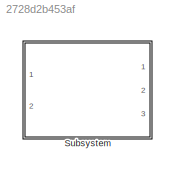
MODEL slx_2728d2b453af
KIND library
CONFIG AbsTol = auto
CONFIG EnableMultiTasking = off
CONFIG FixedStep = auto
CONFIG MaxStep = auto
CONFIG MinStep = auto
CONFIG RelTol = 1e-3
CONFIG SampleTimeConstraint = Unconstrained
CONFIG Solver = VariableStepAuto
CONFIG SolverName = VariableStepAuto
CONFIG StartTime = 0.0
CONFIG StopTime = 10.0
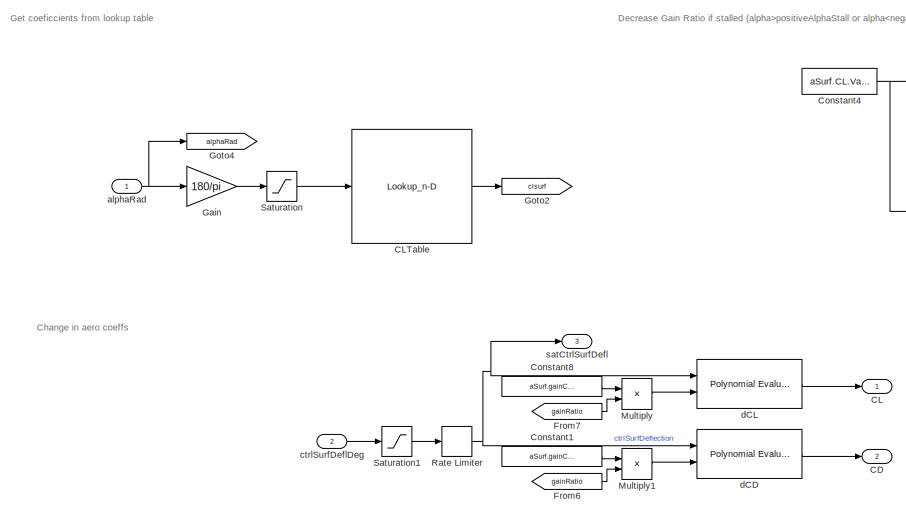
[diagram: Subsystem - part 1/2, left side, full height]
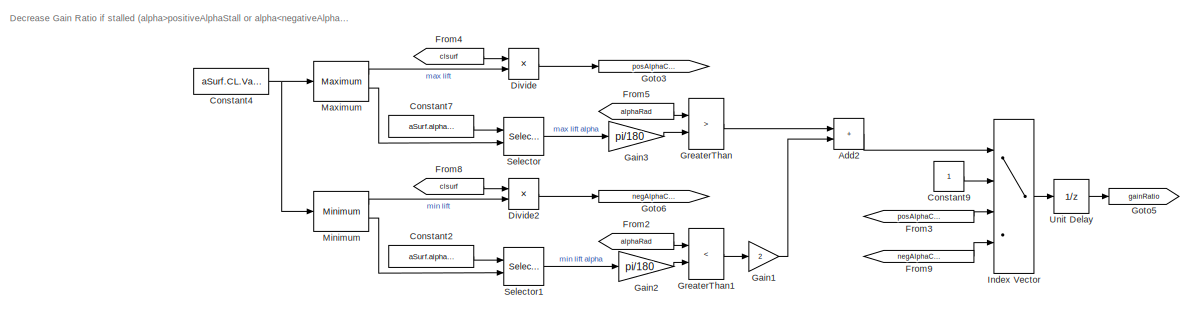
[diagram: Subsystem - part 2/2, top right region]
BLOCK [SubSystem] Subsystem
  Ports = [2, 3]
  RequestExecContextInheritance = off
BLOCK [Sum] Subsystem/Add2
  IconShape = rectangular
  Ports = [2, 1]
BLOCK [Outport] Subsystem/CD
  Port = 2
  VectorParamsAs1DForOutWhenUnconnected = off
BLOCK [Outport] Subsystem/CL
  VectorParamsAs1DForOutWhenUnconnected = off
BLOCK [Lookup_n-D] Subsystem/CLTable
  BreakpointsForDimension1 = aSurf.alpha.Value
  ExtrapMethod = Clip
  InternalRulePriority = Speed
  LookupTableObject = CLTable
  NumberOfTableDimensions = 1
  Ports = [1, 1]
  RndMeth = Simplest
  Table = aSurf.CL.Value
  UseLastTableValue = on
BLOCK [Constant] Subsystem/Constant1
  NameLocation = top
  Value = aSurf.gainCD.Value
BLOCK [Constant] Subsystem/Constant2
  Value = aSurf.alpha.Value
BLOCK [Constant] Subsystem/Constant4
  Value = aSurf.CL.Value
BLOCK [Constant] Subsystem/Constant7
  Value = aSurf.alpha.Value
BLOCK [Constant] Subsystem/Constant8
  NameLocation = top
  Value = aSurf.gainCL.Value
BLOCK [Constant] Subsystem/Constant9
BLOCK [Product] Subsystem/Divide
  Inputs = */
  Ports = [2, 1]
BLOCK [Product] Subsystem/Divide2
  Inputs = */
  Ports = [2, 1]
BLOCK [From] Subsystem/From2
  GotoTag = alphaRad
BLOCK [From] Subsystem/From3
  GotoTag = posAlphaCLRatio
BLOCK [From] Subsystem/From4
  GotoTag = clsurf
BLOCK [From] Subsystem/From5
  GotoTag = alphaRad
BLOCK [From] Subsystem/From6
  GotoTag = gainRatio
BLOCK [From] Subsystem/From7
  GotoTag = gainRatio
BLOCK [From] Subsystem/From8
  GotoTag = clsurf
BLOCK [From] Subsystem/From9
  GotoTag = negAlphaCLRatio
BLOCK [Gain] Subsystem/Gain
  Gain = 180/pi
BLOCK [Gain] Subsystem/Gain1
  Gain = 2
BLOCK [Gain] Subsystem/Gain2
  Gain = pi/180
BLOCK [Gain] Subsystem/Gain3
  Gain = pi/180
BLOCK [Goto] Subsystem/Goto2
  GotoTag = clsurf
BLOCK [Goto] Subsystem/Goto3
  GotoTag = posAlphaCLRatio
BLOCK [Goto] Subsystem/Goto4
  GotoTag = alphaRad
BLOCK [Goto] Subsystem/Goto5
  GotoTag = gainRatio
BLOCK [Goto] Subsystem/Goto6
  GotoTag = negAlphaCLRatio
BLOCK [RelationalOperator] Subsystem/GreaterThan
  InputSameDT = off
  Operator = >
  OutDataTypeStr = boolean
  Ports = [2, 1]
  RndMeth = Simplest
BLOCK [RelationalOperator] Subsystem/GreaterThan1
  InputSameDT = off
  Operator = <
  OutDataTypeStr = boolean
  Ports = [2, 1]
  RndMeth = Simplest
BLOCK [MultiPortSwitch] Subsystem/Index Vector
  DataPortOrder = Zero-based contiguous
  InputSameDT = off
  Ports = [4, 1]
  SaturateOnIntegerOverflow = off
  zeroidx = on
BLOCK [Reference] Subsystem/Maximum  REF=dspstat3/Maximum
  Ports = [1, 2]
  SourceBlock = dspstat3/Maximum
  SourceProductBaseCode = DS
  SourceType = Maximum
  UserDataPersistent = on
BLOCK [Reference] Subsystem/Minimum  REF=dspstat3/Minimum
  Ports = [1, 2]
  SourceBlock = dspstat3/Minimum
  SourceProductBaseCode = DS
  SourceType = Minimum
  UserDataPersistent = on
BLOCK [Product] Subsystem/Multiply
  Ports = [2, 1]
BLOCK [Product] Subsystem/Multiply1
  Ports = [2, 1]
BLOCK [RateLimiter] Subsystem/Rate Limiter
  FallingSlewLimit = -aSurf.maxCtrlDefSpeed.Value
  RisingSlewLimit = aSurf.maxCtrlDefSpeed.Value
  SampleTimeMode = inherited
BLOCK [Saturate] Subsystem/Saturation
  LowerLimit = -90
  UpperLimit = 90
BLOCK [Saturate] Subsystem/Saturation1
  LowerLimit = aSurf.minCtrlDef.Value
  UpperLimit = aSurf.maxCtrlDef.Value
BLOCK [Selector] Subsystem/Selector
  IndexOptions = Index vector (port)
  Indices = [1 3]
  InputPortWidth = length(vhcl.portWing.alpha.Value)
  OutputSizes = 1
  Ports = [2, 1]
BLOCK [Selector] Subsystem/Selector1
  IndexOptions = Index vector (port)
  Indices = [1 3]
  InputPortWidth = length(vhcl.portWing.alpha.Value)
  OutputSizes = 1
  Ports = [2, 1]
BLOCK [UnitDelay] Subsystem/Unit Delay
  HasFrameUpgradeWarning = on
  InitialCondition = 1
  SampleTime = -1
BLOCK [Inport] Subsystem/alphaRad
BLOCK [Inport] Subsystem/ctrlSurfDeflDeg
  Port = 2
BLOCK [Reference] Subsystem/dCD  REF=dsppolyfun/Polynomial
Evaluation
  Ports = [2, 1]
  SourceBlock = dsppolyfun/Polynomial\nEvaluation
  SourceProductBaseCode = DS
  SourceType = Polynomial Evaluation
BLOCK [Reference] Subsystem/dCL  REF=dsppolyfun/Polynomial
Evaluation
  Ports = [2, 1]
  SourceBlock = dsppolyfun/Polynomial\nEvaluation
  SourceProductBaseCode = DS
  SourceType = Polynomial Evaluation
BLOCK [Outport] Subsystem/satCtrlSurfDefl
  Port = 3
ANNOTATION Subsystem: Change in aero coeffs
ANNOTATION Subsystem: Decrease Gain Ratio if stalled (alpha>positiveAlphaStall or alpha<negativeAlphaStall)
ANNOTATION Subsystem: Get coeficcients from lookup table
LINE Subsystem/Add2:1 -> Subsystem/Index Vector:1
LINE Subsystem/CLTable:1 -> Subsystem/Goto2:1
LINE Subsystem/Constant1:1 -> Subsystem/Multiply1:1
LINE Subsystem/Constant2:1 -> Subsystem/Selector1:1
NET Subsystem/Constant4:1 -> Subsystem/Maximum:1, Subsystem/Minimum:1
LINE Subsystem/Constant7:1 -> Subsystem/Selector:1
LINE Subsystem/Constant8:1 -> Subsystem/Multiply:1
LINE Subsystem/Constant9:1 -> Subsystem/Index Vector:2
LINE Subsystem/Divide2:1 -> Subsystem/Goto6:1
LINE Subsystem/Divide:1 -> Subsystem/Goto3:1
LINE Subsystem/From2:1 -> Subsystem/GreaterThan1:1
LINE Subsystem/From3:1 -> Subsystem/Index Vector:3
LINE Subsystem/From4:1 -> Subsystem/Divide:1
LINE Subsystem/From5:1 -> Subsystem/GreaterThan:1
LINE Subsystem/From6:1 -> Subsystem/Multiply1:2
LINE Subsystem/From7:1 -> Subsystem/Multiply:2
LINE Subsystem/From8:1 -> Subsystem/Divide2:1
LINE Subsystem/From9:1 -> Subsystem/Index Vector:4
LINE Subsystem/Gain1:1 -> Subsystem/Add2:2
LINE Subsystem/Gain2:1 -> Subsystem/GreaterThan1:2
LINE Subsystem/Gain3:1 -> Subsystem/GreaterThan:2
LINE Subsystem/Gain:1 -> Subsystem/Saturation:1
LINE Subsystem/GreaterThan1:1 -> Subsystem/Gain1:1
LINE Subsystem/GreaterThan:1 -> Subsystem/Add2:1
LINE Subsystem/Index Vector:1 -> Subsystem/Unit Delay:1
LINE Subsystem/Maximum:1 -> Subsystem/Divide:2
LINE Subsystem/Maximum:2 -> Subsystem/Selector:2
LINE Subsystem/Minimum:1 -> Subsystem/Divide2:2
LINE Subsystem/Minimum:2 -> Subsystem/Selector1:2
LINE Subsystem/Multiply1:1 -> Subsystem/dCD:2
LINE Subsystem/Multiply:1 -> Subsystem/dCL:2
NET Subsystem/Rate Limiter:1 -> Subsystem/dCD:1, Subsystem/dCL:1, Subsystem/satCtrlSurfDefl:1
LINE Subsystem/Saturation1:1 -> Subsystem/Rate Limiter:1
LINE Subsystem/Saturation:1 -> Subsystem/CLTable:1
LINE Subsystem/Selector1:1 -> Subsystem/Gain2:1
LINE Subsystem/Selector:1 -> Subsystem/Gain3:1
LINE Subsystem/Unit Delay:1 -> Subsystem/Goto5:1
NET Subsystem/alphaRad:1 -> Subsystem/Gain:1, Subsystem/Goto4:1
LINE Subsystem/ctrlSurfDeflDeg:1 -> Subsystem/Saturation1:1
LINE Subsystem/dCD:1 -> Subsystem/CD:1
LINE Subsystem/dCL:1 -> Subsystem/CL:1
note: NET lines group one-source signal fan-out (src -> all destinations, sorted); 1:1 wires keep LINE
